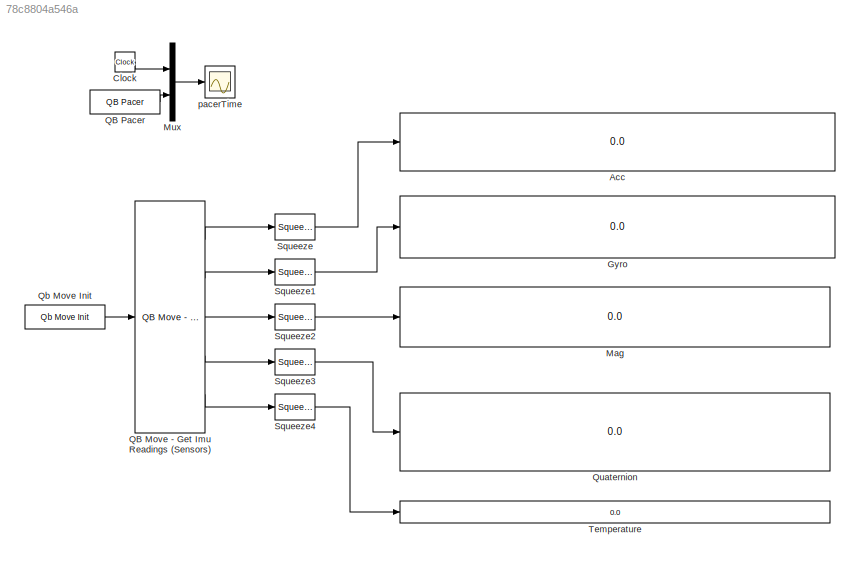
MODEL slx_78c8804a546a
KIND model
CONFIG AbsTol = auto
CONFIG FixedStep = .0005
CONFIG MaxStep = auto
CONFIG MinStep = auto
CONFIG RelTol = 1e-3
CONFIG SampleTimeConstraint = Unconstrained
CONFIG Solver = ode1
CONFIG SolverMode = Auto
CONFIG SolverName = ode1
CONFIG StartTime = 0.0
CONFIG StopTime = inf
BLOCK [Display] Acc
  Decimation = 1
  Ports = [1]
BLOCK [Clock] Clock
BLOCK [Display] Gyro
  Decimation = 1
  Ports = [1]
BLOCK [Display] Mag
  Decimation = 1
  Ports = [1]
BLOCK [Mux] Mux
  DisplayOption = bar
  Inputs = 2
  Ports = [2, 1]
BLOCK [Reference] QB Move - Get Imu Readings (Sensors)  REF=qbmove_library_2015b/QB Move - Get Imu Readings (Sensors)
  Ports = [1, 5]
  SourceBlock = qbmove_library_2015b/QB Move - Get Imu Readings (Sensors)
  SourceType = qb get imu reading
BLOCK [Reference] QB Pacer  REF=QB_pacer_lib/QB Pacer
  Ports = [0, 1]
  SourceBlock = QB_pacer_lib/QB Pacer
  SourceType = RealTime_Pacer
BLOCK [Reference] Qb Move Init  REF=qbmove_library/Qb Move Init
  Ports = [0, 1]
  SourceBlock = qbmove_library/Qb Move Init
  SourceType = qb Init - ISS
BLOCK [Display] Quaternion
  Decimation = 1
  Ports = [1]
BLOCK [Squeeze] Squeeze
BLOCK [Squeeze] Squeeze1
BLOCK [Squeeze] Squeeze2
BLOCK [Squeeze] Squeeze3
BLOCK [Squeeze] Squeeze4
BLOCK [Display] Temperature
  Decimation = 1
  Ports = [1]
BLOCK [Scope] pacerTime
  Ports = [1]
  ScopeSpecificationString = Simulink.scopes.TimeScopeBlockCfg('CurrentConfiguration', extmgr.ConfigurationSet(extmgr.Configuration('Core','General UI',true),extmgr.Configuration('Core','Source UI',true),extmgr.Configuration('Sources','WiredSimulink',true,'DataLoggingVariableName','ScopeData3','DataLoggingLimitDataPoints',true,'DataLoggingSaveFormat','Array','DataLoggingDecimation','1','DataLoggingDecimateData',true),extmgr.C...<+1554ch>
LINE Clock:1 -> Mux:1
LINE Mux:1 -> pacerTime:1
LINE QB Move - Get Imu Readings (Sensors):1 -> Squeeze:1
LINE QB Move - Get Imu Readings (Sensors):2 -> Squeeze1:1
LINE QB Move - Get Imu Readings (Sensors):3 -> Squeeze2:1
LINE QB Move - Get Imu Readings (Sensors):4 -> Squeeze3:1
LINE QB Move - Get Imu Readings (Sensors):5 -> Squeeze4:1
LINE QB Pacer:1 -> Mux:2
LINE Qb Move Init:1 -> QB Move - Get Imu Readings (Sensors):1
LINE Squeeze1:1 -> Gyro:1
LINE Squeeze2:1 -> Mag:1
LINE Squeeze3:1 -> Quaternion:1
LINE Squeeze4:1 -> Temperature:1
LINE Squeeze:1 -> Acc:1
